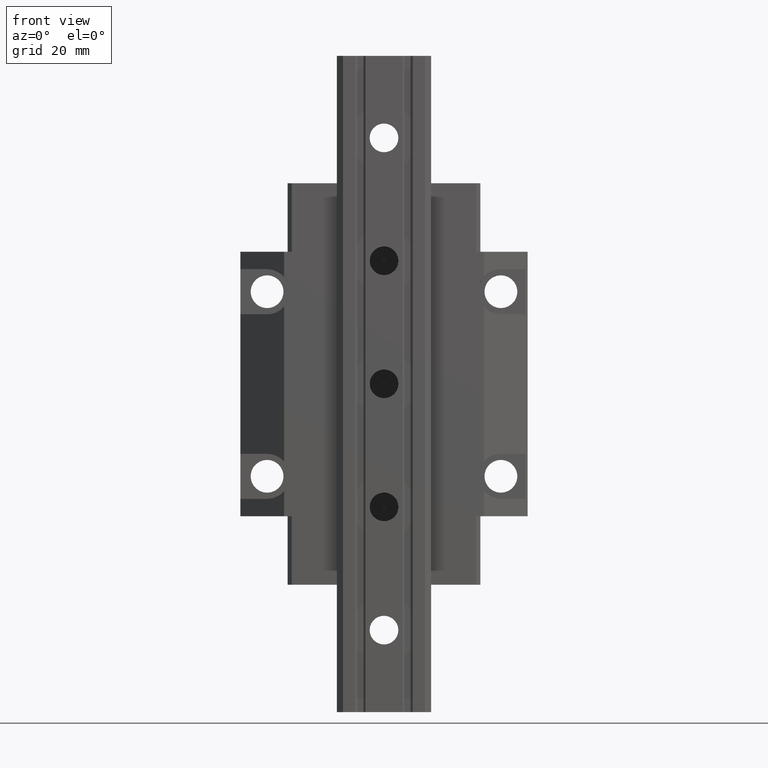
[diagram: clean part render]
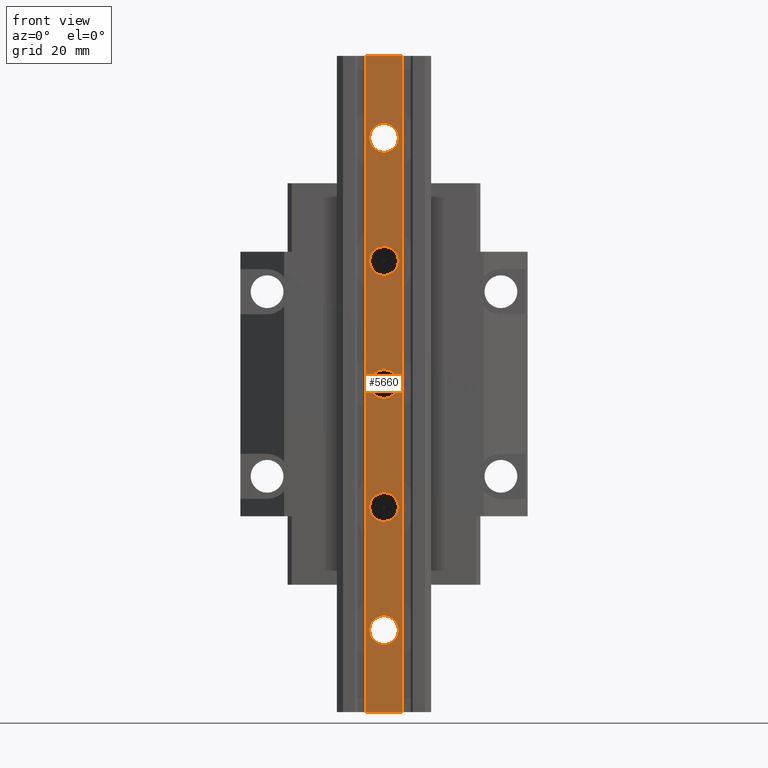
[diagram: same view with one face highlighted and labeled with its STEP entity id]
A machine part, front view. The second image highlights one B-rep face of the part: STEP entity #5660.
In plain terms, the highlighted planar face has unit normal (-0, -1, 0).
Its self-contained STEP definition (entity closure, byte-faithful):
#4582=DIRECTION('',(0.E0,0.E0,1.E0));
#4583=VECTOR('',#4582,1.6E2);
#4584=CARTESIAN_POINT('',(4.500048789040E0,-3.6E1,-8.E1));
#4585=LINE('',#4584,#4583);
#4586=DIRECTION('',(1.E0,-3.000036802323E-14,0.E0));
#4587=VECTOR('',#4586,9.000097578130E0);
#4588=CARTESIAN_POINT('',(-4.500048789090E0,-3.6E1,8.E1));
#4589=LINE('',#4588,#4587);
#4590=DIRECTION('',(-1.E0,3.000036802323E-14,0.E0));
#4591=VECTOR('',#4590,9.000097578129E0);
#4592=CARTESIAN_POINT('',(4.500048789040E0,-3.6E1,-8.E1));
#4593=LINE('',#4592,#4591);
#4594=DIRECTION('',(0.E0,0.E0,1.E0));
#4595=VECTOR('',#4594,1.6E2);
#4596=CARTESIAN_POINT('',(-4.500048789089E0,-3.6E1,-8.E1));
#4597=LINE('',#4596,#4595);
#4598=CARTESIAN_POINT('',(-1.123714507041E-11,-3.6E1,6.E1));
#4599=DIRECTION('',(-3.121429186226E-13,-1.E0,0.E0));
#4600=DIRECTION('',(-1.E0,3.126388037344E-13,0.E0));
#4601=AXIS2_PLACEMENT_3D('',#4598,#4599,#4600);
#4603=CARTESIAN_POINT('',(-1.123714507041E-11,-3.6E1,6.E1));
#4604=DIRECTION('',(-3.121429186226E-13,-1.E0,0.E0));
#4605=DIRECTION('',(1.E0,-3.126388037344E-13,0.E0));
#4606=AXIS2_PLACEMENT_3D('',#4603,#4604,#4605);
#4608=CARTESIAN_POINT('',(-1.123714507041E-11,-3.6E1,3.E1));
#4609=DIRECTION('',(-3.121429186226E-13,-1.E0,0.E0));
#4610=DIRECTION('',(-1.E0,3.126388037344E-13,0.E0));
#4611=AXIS2_PLACEMENT_3D('',#4608,#4609,#4610);
#4613=CARTESIAN_POINT('',(-1.123714507041E-11,-3.6E1,3.E1));
#4614=DIRECTION('',(-3.121429186226E-13,-1.E0,0.E0));
#4615=DIRECTION('',(1.E0,-3.126388037344E-13,0.E0));
#4616=AXIS2_PLACEMENT_3D('',#4613,#4614,#4615);
#4618=CARTESIAN_POINT('',(-1.123714507041E-11,-3.6E1,0.E0));
#4619=DIRECTION('',(-3.121429186226E-13,-1.E0,0.E0));
#4620=DIRECTION('',(-1.E0,3.126388037344E-13,0.E0));
#4621=AXIS2_PLACEMENT_3D('',#4618,#4619,#4620);
#4623=CARTESIAN_POINT('',(-1.123714507041E-11,-3.6E1,0.E0));
#4624=DIRECTION('',(-3.121429186226E-13,-1.E0,0.E0));
#4625=DIRECTION('',(1.E0,-3.126388037344E-13,0.E0));
#4626=AXIS2_PLACEMENT_3D('',#4623,#4624,#4625);
#4628=CARTESIAN_POINT('',(-1.123714507041E-11,-3.6E1,-3.E1));
#4629=DIRECTION('',(-3.121429186226E-13,-1.E0,0.E0));
#4630=DIRECTION('',(-1.E0,3.126388037344E-13,0.E0));
#4631=AXIS2_PLACEMENT_3D('',#4628,#4629,#4630);
#4633=CARTESIAN_POINT('',(-1.123714507041E-11,-3.6E1,-3.E1));
#4634=DIRECTION('',(-3.121429186226E-13,-1.E0,0.E0));
#4635=DIRECTION('',(1.E0,-3.126388037344E-13,0.E0));
#4636=AXIS2_PLACEMENT_3D('',#4633,#4634,#4635);
#4638=CARTESIAN_POINT('',(-1.123714507041E-11,-3.6E1,-6.E1));
#4639=DIRECTION('',(-3.121429186226E-13,-1.E0,0.E0));
#4640=DIRECTION('',(-1.E0,3.126388037344E-13,0.E0));
#4641=AXIS2_PLACEMENT_3D('',#4638,#4639,#4640);
#4643=CARTESIAN_POINT('',(-1.123714507041E-11,-3.6E1,-6.E1));
#4644=DIRECTION('',(-3.121429186226E-13,-1.E0,0.E0));
#4645=DIRECTION('',(1.E0,-3.126388037344E-13,0.E0));
#4646=AXIS2_PLACEMENT_3D('',#4643,#4644,#4645);
#5082=CARTESIAN_POINT('',(-4.500048789089E0,-3.6E1,-8.E1));
#5083=VERTEX_POINT('',#5082);
#5084=CARTESIAN_POINT('',(4.500048789040E0,-3.6E1,-8.E1));
#5085=VERTEX_POINT('',#5084);
#5182=CARTESIAN_POINT('',(4.500048789040E0,-3.6E1,8.E1));
#5183=VERTEX_POINT('',#5182);
#5184=CARTESIAN_POINT('',(-4.500048789090E0,-3.6E1,8.E1));
#5185=VERTEX_POINT('',#5184);
#5186=CARTESIAN_POINT('',(-3.500000000011E0,-3.6E1,6.E1));
#5187=CARTESIAN_POINT('',(3.499999999989E0,-3.6E1,6.E1));
#5188=VERTEX_POINT('',#5186);
#5189=VERTEX_POINT('',#5187);
#5190=CARTESIAN_POINT('',(-3.500000000011E0,-3.6E1,3.E1));
#5191=CARTESIAN_POINT('',(3.499999999989E0,-3.6E1,3.E1));
#5192=VERTEX_POINT('',#5190);
#5193=VERTEX_POINT('',#5191);
#5194=CARTESIAN_POINT('',(-3.500000000011E0,-3.6E1,0.E0));
#5195=CARTESIAN_POINT('',(3.499999999989E0,-3.6E1,0.E0));
#5196=VERTEX_POINT('',#5194);
#5197=VERTEX_POINT('',#5195);
#5198=CARTESIAN_POINT('',(-3.500000000011E0,-3.6E1,-3.E1));
#5199=CARTESIAN_POINT('',(3.499999999989E0,-3.6E1,-3.E1));
#5200=VERTEX_POINT('',#5198);
#5201=VERTEX_POINT('',#5199);
#5202=CARTESIAN_POINT('',(-3.500000000011E0,-3.6E1,-6.E1));
#5203=CARTESIAN_POINT('',(3.499999999989E0,-3.6E1,-6.E1));
#5204=VERTEX_POINT('',#5202);
#5205=VERTEX_POINT('',#5203);
#5617=CARTESIAN_POINT('',(-4.500048789092E0,-3.6E1,-8.E1));
#5618=DIRECTION('',(-2.368450107084E-14,-1.E0,0.E0));
#5619=DIRECTION('',(1.E0,-2.368450107084E-14,0.E0));
#5620=AXIS2_PLACEMENT_3D('',#5617,#5618,#5619);
#5621=PLANE('',#5620);
#5623=ORIENTED_EDGE('',*,*,#5622,.T.);
#5624=ORIENTED_EDGE('',*,*,#5609,.F.);
#5625=ORIENTED_EDGE('',*,*,#5323,.T.);
#5627=ORIENTED_EDGE('',*,*,#5626,.T.);
#5628=EDGE_LOOP('',(#5623,#5624,#5625,#5627));
#5629=FACE_OUTER_BOUND('',#5628,.F.);
#5631=ORIENTED_EDGE('',*,*,#5630,.T.);
#5633=ORIENTED_EDGE('',*,*,#5632,.T.);
#5634=EDGE_LOOP('',(#5631,#5633));
#5635=FACE_BOUND('',#5634,.F.);
#5637=ORIENTED_EDGE('',*,*,#5636,.T.);
#5639=ORIENTED_EDGE('',*,*,#5638,.T.);
#5640=EDGE_LOOP('',(#5637,#5639));
#5641=FACE_BOUND('',#5640,.F.);
#5643=ORIENTED_EDGE('',*,*,#5642,.T.);
#5645=ORIENTED_EDGE('',*,*,#5644,.T.);
#5646=EDGE_LOOP('',(#5643,#5645));
#5647=FACE_BOUND('',#5646,.F.);
#5649=ORIENTED_EDGE('',*,*,#5648,.T.);
#5651=ORIENTED_EDGE('',*,*,#5650,.T.);
#5652=EDGE_LOOP('',(#5649,#5651));
#5653=FACE_BOUND('',#5652,.F.);
#5655=ORIENTED_EDGE('',*,*,#5654,.T.);
#5657=ORIENTED_EDGE('',*,*,#5656,.T.);
#5658=EDGE_LOOP('',(#5655,#5657));
#5659=FACE_BOUND('',#5658,.F.);
#5660=ADVANCED_FACE('',(#5629,#5635,#5641,#5647,#5653,#5659),#5621,.T.);
#4602=CIRCLE('',#4601,3.5E0);
#4607=CIRCLE('',#4606,3.5E0);
#4612=CIRCLE('',#4611,3.5E0);
#4617=CIRCLE('',#4616,3.5E0);
#4622=CIRCLE('',#4621,3.5E0);
#4627=CIRCLE('',#4626,3.5E0);
#4632=CIRCLE('',#4631,3.5E0);
#4637=CIRCLE('',#4636,3.5E0);
#4642=CIRCLE('',#4641,3.5E0);
#4647=CIRCLE('',#4646,3.5E0);
#5323=EDGE_CURVE('',#5085,#5083,#4593,.T.);
#5609=EDGE_CURVE('',#5085,#5183,#4585,.T.);
#5622=EDGE_CURVE('',#5185,#5183,#4589,.T.);
#5626=EDGE_CURVE('',#5083,#5185,#4597,.T.);
#5630=EDGE_CURVE('',#5188,#5189,#4602,.T.);
#5632=EDGE_CURVE('',#5189,#5188,#4607,.T.);
#5636=EDGE_CURVE('',#5192,#5193,#4612,.T.);
#5638=EDGE_CURVE('',#5193,#5192,#4617,.T.);
#5642=EDGE_CURVE('',#5196,#5197,#4622,.T.);
#5644=EDGE_CURVE('',#5197,#5196,#4627,.T.);
#5648=EDGE_CURVE('',#5200,#5201,#4632,.T.);
#5650=EDGE_CURVE('',#5201,#5200,#4637,.T.);
#5654=EDGE_CURVE('',#5204,#5205,#4642,.T.);
#5656=EDGE_CURVE('',#5205,#5204,#4647,.T.);